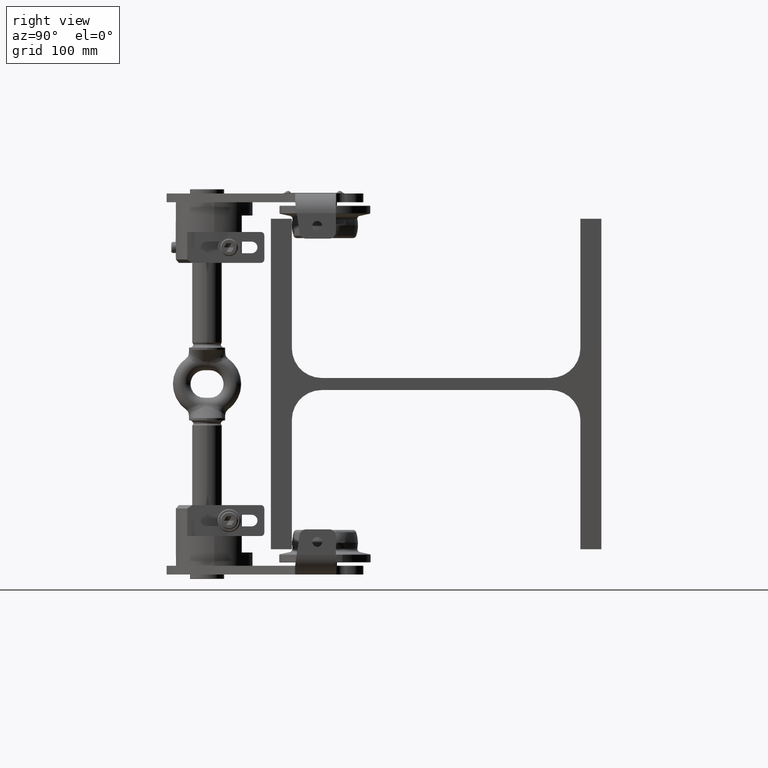
[diagram: clean part render]
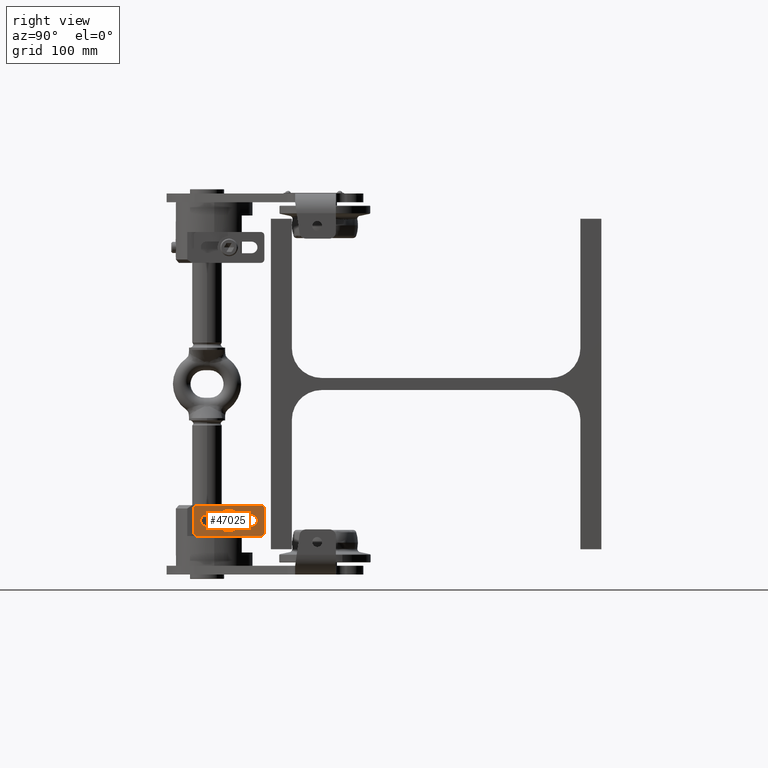
[diagram: same view with one face highlighted and labeled with its STEP entity id]
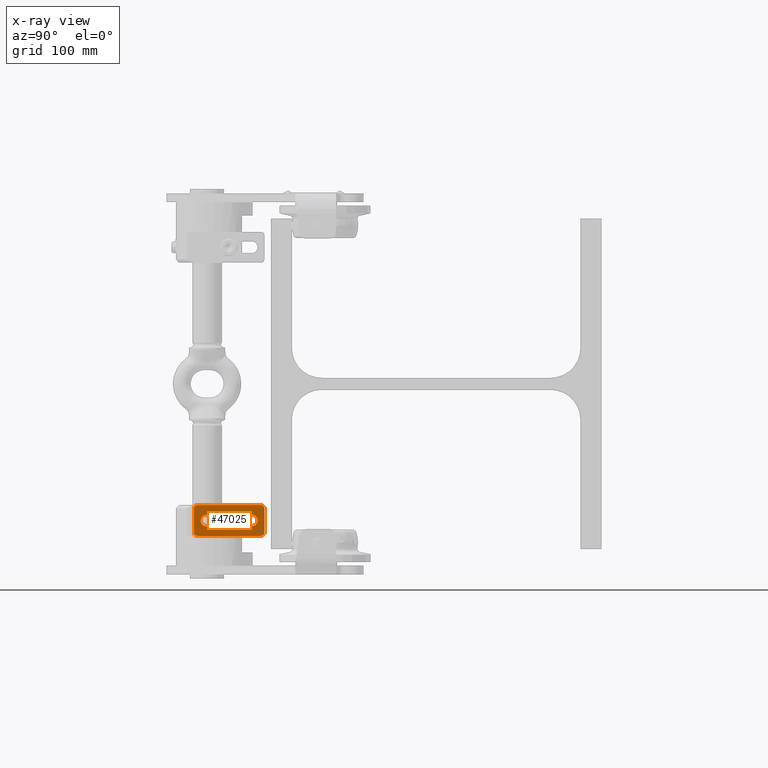
[diagram: x-ray of the same camera — body ghosted, the highlighted face saturated]
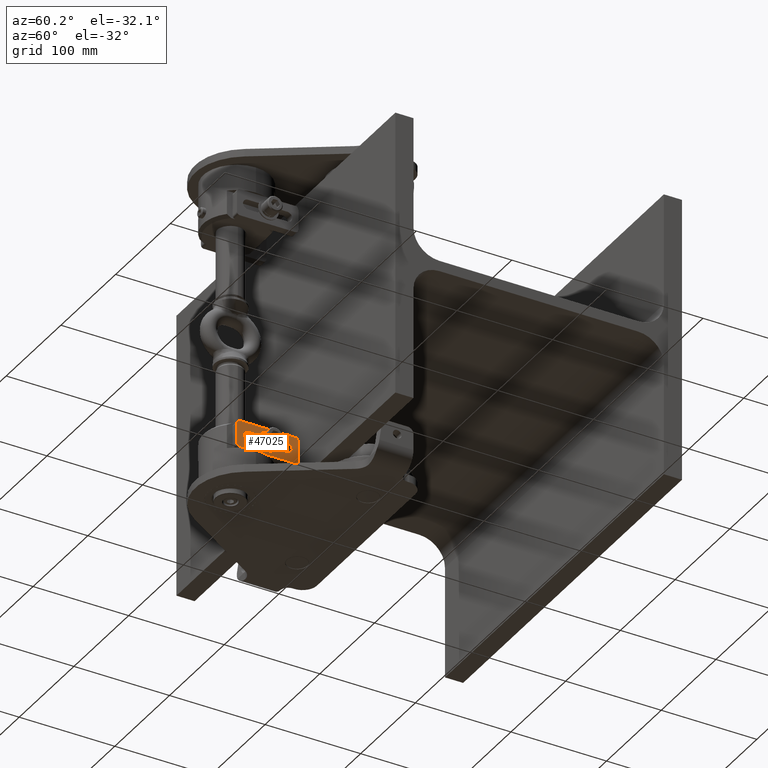
[diagram: same view with one face highlighted and labeled with its STEP entity id]
A machine part, right view. The second image highlights one B-rep face of the part: STEP entity #47025.
The next image is the same camera in x-ray: the body ghosted, the highlighted face saturated — about 0% of this face is hidden behind the body in this view.
A second angle (auxiliary view) of the same face is appended — the face is thin or edge-on in the first view.
In plain terms, the highlighted planar face has unit normal (-1, 0, 0).
Its self-contained STEP definition (entity closure, byte-faithful):
#56 = CARTESIAN_POINT ( 'NONE',  ( 33.00000000000000700, -167.4999999999998600, -129.2499999999999700 ) ) ;
#1376 = DIRECTION ( 'NONE',  ( 0.0000000000000000000, 0.0000000000000000000, 1.000000000000000000 ) ) ;
#1521 = VERTEX_POINT ( 'NONE', #38561 ) ;
#2089 = CARTESIAN_POINT ( 'NONE',  ( 33.00000000000000700, -208.4999999999998600, -123.9999999999999700 ) ) ;
#2829 = VECTOR ( 'NONE', #19690, 1000.000000000000000 ) ;
#3000 = VERTEX_POINT ( 'NONE', #16243 ) ;
#3105 = ORIENTED_EDGE ( 'NONE', *, *, #13901, .T. ) ;
#3322 = DIRECTION ( 'NONE',  ( 1.000000000000000000, 0.0000000000000000000, 0.0000000000000000000 ) ) ;
#4421 = CARTESIAN_POINT ( 'NONE',  ( 33.00000000000000700, -216.9999999999998600, -134.9999999999999700 ) ) ;
#5289 = EDGE_CURVE ( 'NONE', #17466, #52236, #36687, .T. ) ;
#5566 = CARTESIAN_POINT ( 'NONE',  ( 33.00000000000000700, -219.9999999999998600, -112.9999999999999600 ) ) ;
#6183 = CARTESIAN_POINT ( 'NONE',  ( 33.00000000000000700, -219.9999999999998600, -112.9999999999999600 ) ) ;
#6625 = CARTESIAN_POINT ( 'NONE',  ( 33.00000000000000700, -216.9999999999998600, -134.9999999999999700 ) ) ;
#6841 = ORIENTED_EDGE ( 'NONE', *, *, #20202, .F. ) ;
#6999 = DIRECTION ( 'NONE',  ( 1.000000000000000000, 0.0000000000000000000, 0.0000000000000000000 ) ) ;
#7384 = CARTESIAN_POINT ( 'NONE',  ( 33.00000000000000700, -216.9999999999998600, -112.9999999999999600 ) ) ;
#8160 = AXIS2_PLACEMENT_3D ( 'NONE', #4421, #36797, #20357 ) ;
#9649 = VERTEX_POINT ( 'NONE', #42688 ) ;
#10338 = FACE_OUTER_BOUND ( 'NONE', #21230, .T. ) ;
#10344 = DIRECTION ( 'NONE',  ( 1.000000000000000000, 0.0000000000000000000, 0.0000000000000000000 ) ) ;
#11176 = LINE ( 'NONE', #43711, #38849 ) ;
#11276 = LINE ( 'NONE', #31600, #32558 ) ;
#11325 = DIRECTION ( 'NONE',  ( 1.000000000000000000, 0.0000000000000000000, 0.0000000000000000000 ) ) ;
#11847 = ORIENTED_EDGE ( 'NONE', *, *, #5289, .T. ) ;
#12048 = CIRCLE ( 'NONE', #40492, 3.000000000000002700 ) ;
#12397 = ORIENTED_EDGE ( 'NONE', *, *, #49467, .F. ) ;
#12917 = FACE_BOUND ( 'NONE', #34686, .T. ) ;
#12961 = ORIENTED_EDGE ( 'NONE', *, *, #37352, .T. ) ;
#13901 = EDGE_CURVE ( 'NONE', #3000, #9649, #46615, .T. ) ;
#14379 = ORIENTED_EDGE ( 'NONE', *, *, #22782, .T. ) ;
#14473 = EDGE_CURVE ( 'NONE', #28411, #51578, #28152, .T. ) ;
#15261 = AXIS2_PLACEMENT_3D ( 'NONE', #46547, #50644, #1376 ) ;
#15629 = CARTESIAN_POINT ( 'NONE',  ( 33.00000000000000700, -216.9999999999998600, -137.9999999999999700 ) ) ;
#16243 = CARTESIAN_POINT ( 'NONE',  ( 33.00000000000000700, -155.9999999999998600, -134.9999999999999700 ) ) ;
#17466 = VERTEX_POINT ( 'NONE', #46381 ) ;
#18222 = DIRECTION ( 'NONE',  ( 0.0000000000000000000, 0.0000000000000000000, -1.000000000000000000 ) ) ;
#18530 = EDGE_CURVE ( 'NONE', #38220, #45586, #44106, .T. ) ;
#18626 = CARTESIAN_POINT ( 'NONE',  ( 33.00000000000000700, -158.9999999999998600, -109.9999999999999700 ) ) ;
#19177 = DIRECTION ( 'NONE',  ( 0.0000000000000000000, 0.0000000000000000000, 1.000000000000000000 ) ) ;
#19330 = DIRECTION ( 'NONE',  ( 0.0000000000000000000, -1.000000000000000000, -1.851499983140124200E-016 ) ) ;
#19340 = ORIENTED_EDGE ( 'NONE', *, *, #28005, .T. ) ;
#19690 = DIRECTION ( 'NONE',  ( -0.0000000000000000000, 1.110223024625156500E-016, 1.000000000000000000 ) ) ;
#20202 = EDGE_CURVE ( 'NONE', #51578, #20974, #23545, .T. ) ;
#20357 = DIRECTION ( 'NONE',  ( 0.0000000000000000000, 1.110223024625156500E-016, 1.000000000000000000 ) ) ;
#20974 = VERTEX_POINT ( 'NONE', #47152 ) ;
#21230 = EDGE_LOOP ( 'NONE', ( #24730, #44947, #19340, #3105, #14379, #48202, #11847, #12961 ) ) ;
#21282 = LINE ( 'NONE', #49650, #49009 ) ;
#21765 = AXIS2_PLACEMENT_3D ( 'NONE', #6625, #6999, #19177 ) ;
#22559 = CARTESIAN_POINT ( 'NONE',  ( 33.00000000000000700, -167.4999999999998600, -123.9999999999999700 ) ) ;
#22719 = DIRECTION ( 'NONE',  ( 0.0000000000000000000, 1.000000000000000000, 1.851499983140124200E-016 ) ) ;
#22782 = EDGE_CURVE ( 'NONE', #9649, #48480, #25873, .T. ) ;
#23338 = CARTESIAN_POINT ( 'NONE',  ( 33.00000000000000700, -155.9999999999998600, -112.9999999999999700 ) ) ;
#23545 = CIRCLE ( 'NONE', #36100, 5.250000000000004400 ) ;
#24730 = ORIENTED_EDGE ( 'NONE', *, *, #18530, .T. ) ;
#24841 = ORIENTED_EDGE ( 'NONE', *, *, #14473, .F. ) ;
#24965 = VECTOR ( 'NONE', #22719, 1000.000000000000000 ) ;
#25873 = CIRCLE ( 'NONE', #15261, 3.000000000000002700 ) ;
#26238 = CARTESIAN_POINT ( 'NONE',  ( 33.00000000000000700, -219.9999999999998600, -134.9999999999999700 ) ) ;
#27075 = CARTESIAN_POINT ( 'NONE',  ( 33.00000000000000700, -167.4999999999998600, -129.2499999999999700 ) ) ;
#28005 = EDGE_CURVE ( 'NONE', #1521, #3000, #12048, .T. ) ;
#28109 = AXIS2_PLACEMENT_3D ( 'NONE', #2089, #10344, #18222 ) ;
#28152 = LINE ( 'NONE', #27075, #24965 ) ;
#28411 = VERTEX_POINT ( 'NONE', #50908 ) ;
#30437 = DIRECTION ( 'NONE',  ( 0.0000000000000000000, -1.110223024625156500E-016, -1.000000000000000000 ) ) ;
#30814 = LINE ( 'NONE', #6183, #32121 ) ;
#31600 = CARTESIAN_POINT ( 'NONE',  ( 33.00000000000000700, -167.4999999999998600, -118.7499999999999700 ) ) ;
#32121 = VECTOR ( 'NONE', #30437, 1000.000000000000000 ) ;
#32558 = VECTOR ( 'NONE', #19330, 1000.000000000000000 ) ;
#34003 = DIRECTION ( 'NONE',  ( -0.0000000000000000000, -1.000000000000000000, 1.110223024625156500E-016 ) ) ;
#34686 = EDGE_LOOP ( 'NONE', ( #6841, #24841, #51545, #12397 ) ) ;
#36100 = AXIS2_PLACEMENT_3D ( 'NONE', #22559, #43665, #38773 ) ;
#36687 = CIRCLE ( 'NONE', #37863, 3.000000000000002700 ) ;
#36797 = DIRECTION ( 'NONE',  ( -1.000000000000000000, 0.0000000000000000000, 0.0000000000000000000 ) ) ;
#37352 = EDGE_CURVE ( 'NONE', #52236, #38220, #30814, .T. ) ;
#37863 = AXIS2_PLACEMENT_3D ( 'NONE', #7384, #11325, #52671 ) ;
#38220 = VERTEX_POINT ( 'NONE', #26238 ) ;
#38561 = CARTESIAN_POINT ( 'NONE',  ( 33.00000000000000700, -158.9999999999998600, -137.9999999999999700 ) ) ;
#38773 = DIRECTION ( 'NONE',  ( 0.0000000000000000000, 0.0000000000000000000, -1.000000000000000000 ) ) ;
#38849 = VECTOR ( 'NONE', #47858, 1000.000000000000000 ) ;
#39754 = CARTESIAN_POINT ( 'NONE',  ( 33.00000000000000700, -208.4999999999998600, -118.7499999999999700 ) ) ;
#40492 = AXIS2_PLACEMENT_3D ( 'NONE', #44181, #3322, #48143 ) ;
#42688 = CARTESIAN_POINT ( 'NONE',  ( 33.00000000000000700, -155.9999999999998600, -112.9999999999999700 ) ) ;
#43382 = EDGE_CURVE ( 'NONE', #44575, #28411, #46299, .T. ) ;
#43665 = DIRECTION ( 'NONE',  ( 1.000000000000000000, 0.0000000000000000000, 0.0000000000000000000 ) ) ;
#43711 = CARTESIAN_POINT ( 'NONE',  ( 33.00000000000000700, -216.9999999999998600, -137.9999999999999700 ) ) ;
#44106 = CIRCLE ( 'NONE', #21765, 3.000000000000002700 ) ;
#44181 = CARTESIAN_POINT ( 'NONE',  ( 33.00000000000000700, -158.9999999999998600, -134.9999999999999700 ) ) ;
#44575 = VERTEX_POINT ( 'NONE', #39754 ) ;
#44947 = ORIENTED_EDGE ( 'NONE', *, *, #47282, .T. ) ;
#45405 = PLANE ( 'NONE',  #8160 ) ;
#45586 = VERTEX_POINT ( 'NONE', #15629 ) ;
#46299 = CIRCLE ( 'NONE', #28109, 5.250000000000004400 ) ;
#46381 = CARTESIAN_POINT ( 'NONE',  ( 33.00000000000000700, -216.9999999999998600, -109.9999999999999700 ) ) ;
#46547 = CARTESIAN_POINT ( 'NONE',  ( 33.00000000000000700, -158.9999999999998600, -112.9999999999999700 ) ) ;
#46615 = LINE ( 'NONE', #23338, #2829 ) ;
#47025 = ADVANCED_FACE ( 'NONE', ( #10338, #12917 ), #45405, .F. ) ;
#47152 = CARTESIAN_POINT ( 'NONE',  ( 33.00000000000000700, -167.4999999999998600, -118.7499999999999700 ) ) ;
#47282 = EDGE_CURVE ( 'NONE', #45586, #1521, #11176, .T. ) ;
#47858 = DIRECTION ( 'NONE',  ( 0.0000000000000000000, 1.000000000000000000, -1.110223024625156500E-016 ) ) ;
#48143 = DIRECTION ( 'NONE',  ( 0.0000000000000000000, 0.0000000000000000000, 1.000000000000000000 ) ) ;
#48157 = EDGE_CURVE ( 'NONE', #48480, #17466, #21282, .T. ) ;
#48202 = ORIENTED_EDGE ( 'NONE', *, *, #48157, .T. ) ;
#48480 = VERTEX_POINT ( 'NONE', #18626 ) ;
#49009 = VECTOR ( 'NONE', #34003, 1000.000000000000000 ) ;
#49467 = EDGE_CURVE ( 'NONE', #20974, #44575, #11276, .T. ) ;
#49650 = CARTESIAN_POINT ( 'NONE',  ( 33.00000000000000700, -216.9999999999998600, -109.9999999999999700 ) ) ;
#50644 = DIRECTION ( 'NONE',  ( 1.000000000000000000, 0.0000000000000000000, 0.0000000000000000000 ) ) ;
#50908 = CARTESIAN_POINT ( 'NONE',  ( 33.00000000000000700, -208.4999999999998600, -129.2499999999999700 ) ) ;
#51545 = ORIENTED_EDGE ( 'NONE', *, *, #43382, .F. ) ;
#51578 = VERTEX_POINT ( 'NONE', #56 ) ;
#52236 = VERTEX_POINT ( 'NONE', #5566 ) ;
#52671 = DIRECTION ( 'NONE',  ( 0.0000000000000000000, 0.0000000000000000000, 1.000000000000000000 ) ) ;